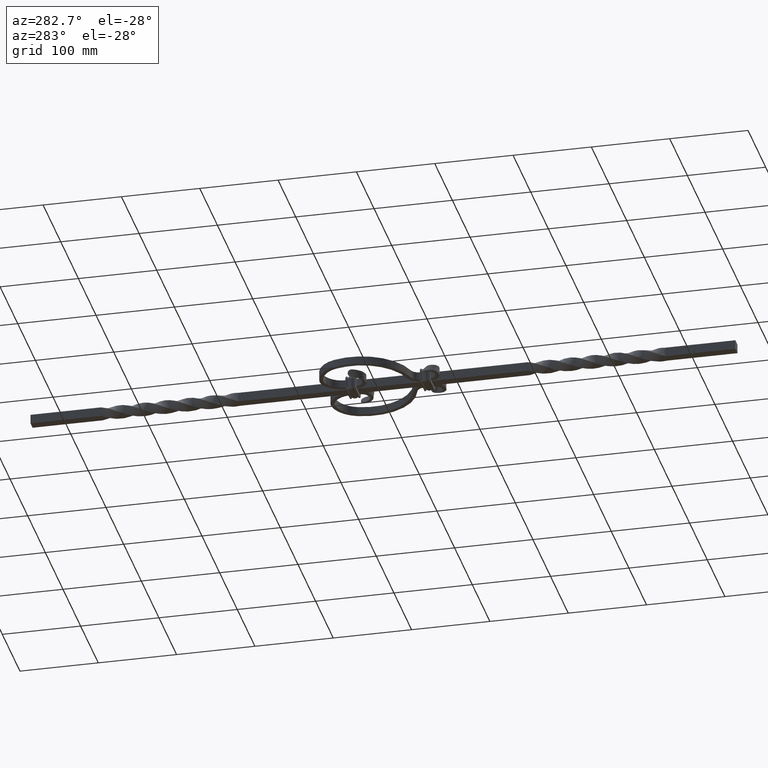
[diagram: clean part render]
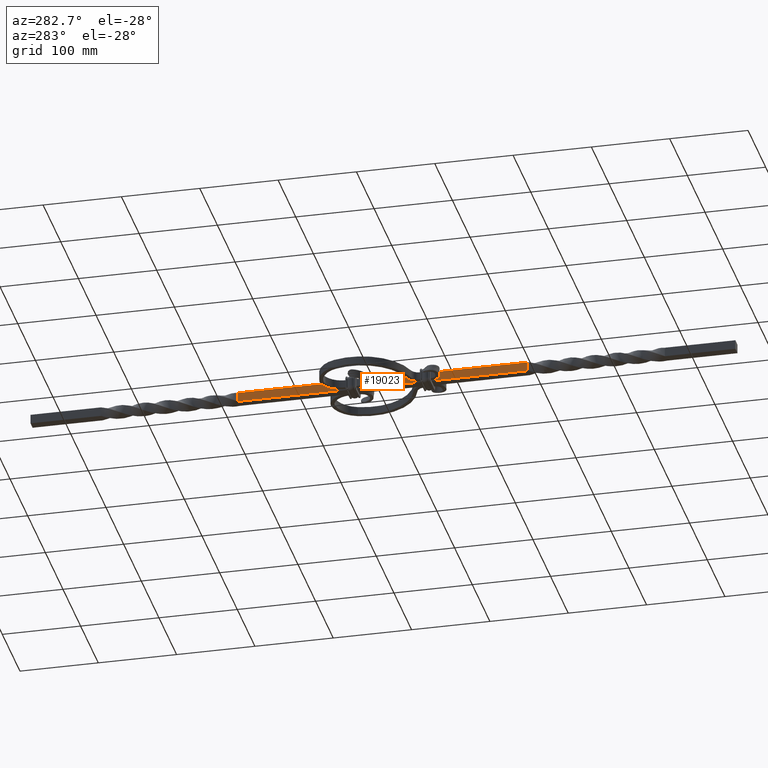
[diagram: same view with one face highlighted and labeled with its STEP entity id]
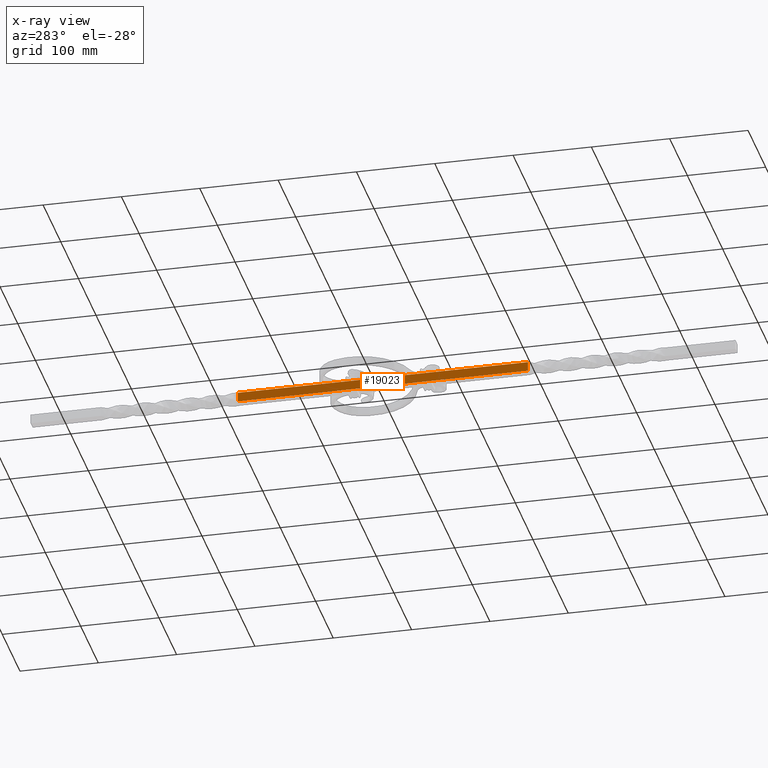
[diagram: x-ray of the same camera — body ghosted, the highlighted face saturated]
A machine part, auxiliary view. The second image highlights one B-rep face of the part: STEP entity #19023.
The next image is the same camera in x-ray: the body ghosted, the highlighted face saturated — about 0% of this face is hidden behind the body in this view.
In plain terms, the highlighted planar face has unit normal (1, 0, 0).
Its self-contained STEP definition (entity closure, byte-faithful):
#100 = ORIENTED_EDGE ( 'NONE', *, *, #21647, .T. ) ;
#171 = LINE ( 'NONE', #4793, #22237 ) ;
#263 = CARTESIAN_POINT ( 'NONE',  ( -6.000000000000028422, 450.0000000000000000, 5.999999999999983125 ) ) ;
#525 = VECTOR ( 'NONE', #18694, 1000.000000000000000 ) ;
#673 = VECTOR ( 'NONE', #3649, 1000.000000000000000 ) ;
#845 = EDGE_CURVE ( 'NONE', #11384, #17446, #21747, .T. ) ;
#1004 = EDGE_CURVE ( 'NONE', #11456, #11384, #21497, .T. ) ;
#1020 = VERTEX_POINT ( 'NONE', #2914 ) ;
#1068 = VERTEX_POINT ( 'NONE', #4979 ) ;
#1304 = CARTESIAN_POINT ( 'NONE',  ( -6.000000000000028422, 450.0000000000000000, 5.999999999999983125 ) ) ;
#1703 = VERTEX_POINT ( 'NONE', #13527 ) ;
#2309 = LINE ( 'NONE', #3435, #673 ) ;
#2613 = DIRECTION ( 'NONE',  ( 9.333221386254594486E-18, -1.000000000000000000, -1.800135746611762479E-17 ) ) ;
#2623 = VECTOR ( 'NONE', #3383, 1000.000000000000000 ) ;
#2646 = EDGE_CURVE ( 'NONE', #11003, #9557, #14689, .T. ) ;
#2663 = CARTESIAN_POINT ( 'NONE',  ( -6.000000000000025757, -49.04958985097749036, 6.000000000000000888 ) ) ;
#2858 = CARTESIAN_POINT ( 'NONE',  ( -6.000000000000028422, 450.0000000000000000, 5.999999999999983125 ) ) ;
#2914 = CARTESIAN_POINT ( 'NONE',  ( -6.000012699848756625, -185.0000053074768402, -6.000001498873435146 ) ) ;
#3383 = DIRECTION ( 'NONE',  ( 9.333221386254594486E-18, -1.000000000000000000, -1.800135746611762479E-17 ) ) ;
#3435 = CARTESIAN_POINT ( 'NONE',  ( -5.999999999999977796, 450.0000000000000000, -6.000000000000017764 ) ) ;
#3523 = EDGE_CURVE ( 'NONE', #17446, #15275, #20066, .T. ) ;
#3649 = DIRECTION ( 'NONE',  ( 9.333221386254594486E-18, -1.000000000000000000, -1.800135746611762479E-17 ) ) ;
#4347 = EDGE_CURVE ( 'NONE', #15139, #1020, #12012, .T. ) ;
#4414 = EDGE_CURVE ( 'NONE', #9557, #1703, #171, .T. ) ;
#4664 = CARTESIAN_POINT ( 'NONE',  ( -5.999999999999977796, 450.0000000000000000, -6.000000000000017764 ) ) ;
#4793 = CARTESIAN_POINT ( 'NONE',  ( -6.000000000000028422, 450.0000000000000000, 5.999999999999983125 ) ) ;
#4979 = CARTESIAN_POINT ( 'NONE',  ( -6.000000000000024869, 45.99999999999998579, 5.999999999999976019 ) ) ;
#5232 = CARTESIAN_POINT ( 'NONE',  ( -6.000021740676984017, 185.0000051777319356, 2.000000008745314251 ) ) ;
#5241 = DIRECTION ( 'NONE',  ( 1.000000000000000000, 9.333221386254517449E-18, 4.296331808835892763E-15 ) ) ;
#5298 = CARTESIAN_POINT ( 'NONE',  ( -6.000001086903352210, 185.0000040164767938, -6.000012850454276681 ) ) ;
#5368 = VECTOR ( 'NONE', #12365, 1000.000000000000000 ) ;
#5486 = ORIENTED_EDGE ( 'NONE', *, *, #4347, .F. ) ;
#5498 = ORIENTED_EDGE ( 'NONE', *, *, #21449, .F. ) ;
#6165 = CARTESIAN_POINT ( 'NONE',  ( -6.000001086903352210, 185.0000040164767938, -6.000012850454276681 ) ) ;
#6905 = PLANE ( 'NONE',  #21078 ) ;
#7197 = DIRECTION ( 'NONE',  ( 9.333221386254594486E-18, -1.000000000000000000, -1.800135746611762479E-17 ) ) ;
#7369 = EDGE_CURVE ( 'NONE', #1068, #11003, #11504, .T. ) ;
#7382 = VECTOR ( 'NONE', #2613, 1000.000000000000000 ) ;
#8314 = LINE ( 'NONE', #1304, #21425 ) ;
#8392 = DIRECTION ( 'NONE',  ( 9.333221386254594486E-18, -1.000000000000000000, -1.800135746611762479E-17 ) ) ;
#8475 = ORIENTED_EDGE ( 'NONE', *, *, #4414, .F. ) ;
#8737 = VERTEX_POINT ( 'NONE', #22291 ) ;
#8900 = EDGE_CURVE ( 'NONE', #19640, #8737, #15071, .T. ) ;
#8969 = EDGE_CURVE ( 'NONE', #15275, #1020, #9025, .T. ) ;
#9025 = LINE ( 'NONE', #18038, #7382 ) ;
#9088 = DIRECTION ( 'NONE',  ( 9.333221386254594486E-18, -1.000000000000000000, -1.800135746611762479E-17 ) ) ;
#9557 = VERTEX_POINT ( 'NONE', #2663 ) ;
#10205 = CARTESIAN_POINT ( 'NONE',  ( -6.000012699848756625, -185.0000053074768402, -6.000001498873435146 ) ) ;
#10277 = CARTESIAN_POINT ( 'NONE',  ( -6.000012850454238489, 185.0000040164767938, 6.000001086903380632 ) ) ;
#10377 = CARTESIAN_POINT ( 'NONE',  ( -5.999999999999972466, -62.04958985097748325, -6.000000000000009770 ) ) ;
#10440 = VECTOR ( 'NONE', #7197, 1000.000000000000000 ) ;
#10928 = CARTESIAN_POINT ( 'NONE',  ( -6.000000000000024869, 33.00000000000000000, 6.000000000000003553 ) ) ;
#11003 = VERTEX_POINT ( 'NONE', #10928 ) ;
#11384 = VERTEX_POINT ( 'NONE', #16532 ) ;
#11456 = VERTEX_POINT ( 'NONE', #16603 ) ;
#11504 = LINE ( 'NONE', #15897, #10440 ) ;
#11830 = EDGE_LOOP ( 'NONE', ( #12366, #19462, #100, #21990, #17106, #12787, #14774, #5486, #5498, #8475, #20376, #14502 ) ) ;
#12012 = B_SPLINE_CURVE_WITH_KNOTS ( 'NONE', 3,
 ( #16751, #21987, #15530, #10205 ),
 .UNSPECIFIED., .F., .F.,
 ( 4, 4 ),
 ( 0.000000000000000000, 0.9999999583332528363 ),
 .UNSPECIFIED. ) ;
#12365 = DIRECTION ( 'NONE',  ( 9.333221386254594486E-18, -1.000000000000000000, -1.800135746611762479E-17 ) ) ;
#12366 = ORIENTED_EDGE ( 'NONE', *, *, #15132, .F. ) ;
#12648 = LINE ( 'NONE', #263, #15084 ) ;
#12787 = ORIENTED_EDGE ( 'NONE', *, *, #3523, .T. ) ;
#13527 = CARTESIAN_POINT ( 'NONE',  ( -6.000000000000025757, -62.04958985097747615, 5.999999999999973355 ) ) ;
#13904 = CARTESIAN_POINT ( 'NONE',  ( -5.999999999999977796, 450.0000000000000000, -6.000000000000017764 ) ) ;
#14502 = ORIENTED_EDGE ( 'NONE', *, *, #7369, .F. ) ;
#14618 = CARTESIAN_POINT ( 'NONE',  ( -5.999999999999973355, -49.04958985097749036, -6.000000000000006217 ) ) ;
#14689 = LINE ( 'NONE', #2858, #2623 ) ;
#14774 = ORIENTED_EDGE ( 'NONE', *, *, #8969, .T. ) ;
#15071 = B_SPLINE_CURVE_WITH_KNOTS ( 'NONE', 3,
 ( #5298, #20690, #5232, #10277 ),
 .UNSPECIFIED., .F., .F.,
 ( 4, 4 ),
 ( 0.000000000000000000, 1.000000000000000000 ),
 .UNSPECIFIED. ) ;
#15084 = VECTOR ( 'NONE', #9088, 1000.000000000000000 ) ;
#15132 = EDGE_CURVE ( 'NONE', #8737, #1068, #12648, .T. ) ;
#15139 = VERTEX_POINT ( 'NONE', #17949 ) ;
#15275 = VERTEX_POINT ( 'NONE', #10377 ) ;
#15530 = CARTESIAN_POINT ( 'NONE',  ( -6.000021004258261570, -185.0000051440727873, -1.999996130647088588 ) ) ;
#15897 = CARTESIAN_POINT ( 'NONE',  ( -6.000000000000028422, 450.0000000000000000, 5.999999999999983125 ) ) ;
#16532 = CARTESIAN_POINT ( 'NONE',  ( -5.999999999999974243, 32.99999999999997158, -6.000000000000024869 ) ) ;
#16603 = CARTESIAN_POINT ( 'NONE',  ( -5.999999999999974243, 45.99999999999999289, -6.000000000000001776 ) ) ;
#16751 = CARTESIAN_POINT ( 'NONE',  ( -6.000001859162638063, -185.0000052560342567, 6.000013638740846034 ) ) ;
#17106 = ORIENTED_EDGE ( 'NONE', *, *, #845, .T. ) ;
#17446 = VERTEX_POINT ( 'NONE', #14618 ) ;
#17450 = DIRECTION ( 'NONE',  ( 4.296331808835892763E-15, 1.800135746611766177E-17, -1.000000000000000000 ) ) ;
#17949 = CARTESIAN_POINT ( 'NONE',  ( -6.000001859162638063, -185.0000052560342567, 6.000013638740846034 ) ) ;
#18034 = DIRECTION ( 'NONE',  ( 9.333221386254594486E-18, -1.000000000000000000, -1.800135746611762479E-17 ) ) ;
#18038 = CARTESIAN_POINT ( 'NONE',  ( -5.999999999999977796, 450.0000000000000000, -6.000000000000017764 ) ) ;
#18694 = DIRECTION ( 'NONE',  ( 9.333221386254594486E-18, -1.000000000000000000, -1.800135746611762479E-17 ) ) ;
#19023 = ADVANCED_FACE ( 'NONE', ( #20927 ), #6905, .F. ) ;
#19046 = CARTESIAN_POINT ( 'NONE',  ( -5.999999999999977796, 450.0000000000000000, -6.000000000000017764 ) ) ;
#19462 = ORIENTED_EDGE ( 'NONE', *, *, #8900, .F. ) ;
#19640 = VERTEX_POINT ( 'NONE', #6165 ) ;
#19856 = VECTOR ( 'NONE', #18034, 1000.000000000000000 ) ;
#20050 = CARTESIAN_POINT ( 'NONE',  ( -5.999999999999977796, 450.0000000000000000, -6.000000000000017764 ) ) ;
#20066 = LINE ( 'NONE', #13904, #5368 ) ;
#20376 = ORIENTED_EDGE ( 'NONE', *, *, #2646, .F. ) ;
#20690 = CARTESIAN_POINT ( 'NONE',  ( -6.000014637220391300, 185.0000017354732620, -1.999999991245808184 ) ) ;
#20927 = FACE_OUTER_BOUND ( 'NONE', #11830, .T. ) ;
#21078 = AXIS2_PLACEMENT_3D ( 'NONE', #19046, #5241, #17450 ) ;
#21425 = VECTOR ( 'NONE', #8392, 1000.000000000000000 ) ;
#21449 = EDGE_CURVE ( 'NONE', #1703, #15139, #8314, .T. ) ;
#21497 = LINE ( 'NONE', #4664, #525 ) ;
#21647 = EDGE_CURVE ( 'NONE', #19640, #11456, #2309, .T. ) ;
#21747 = LINE ( 'NONE', #20050, #19856 ) ;
#21987 = CARTESIAN_POINT ( 'NONE',  ( -6.000014259201231326, -185.0000051440680693, 2.000008420971838952 ) ) ;
#21990 = ORIENTED_EDGE ( 'NONE', *, *, #1004, .T. ) ;
#22011 = DIRECTION ( 'NONE',  ( 9.333221386254594486E-18, -1.000000000000000000, -1.800135746611762479E-17 ) ) ;
#22237 = VECTOR ( 'NONE', #22011, 1000.000000000000000 ) ;
#22291 = CARTESIAN_POINT ( 'NONE',  ( -6.000012850454238489, 185.0000040164767938, 6.000001086903380632 ) ) ;